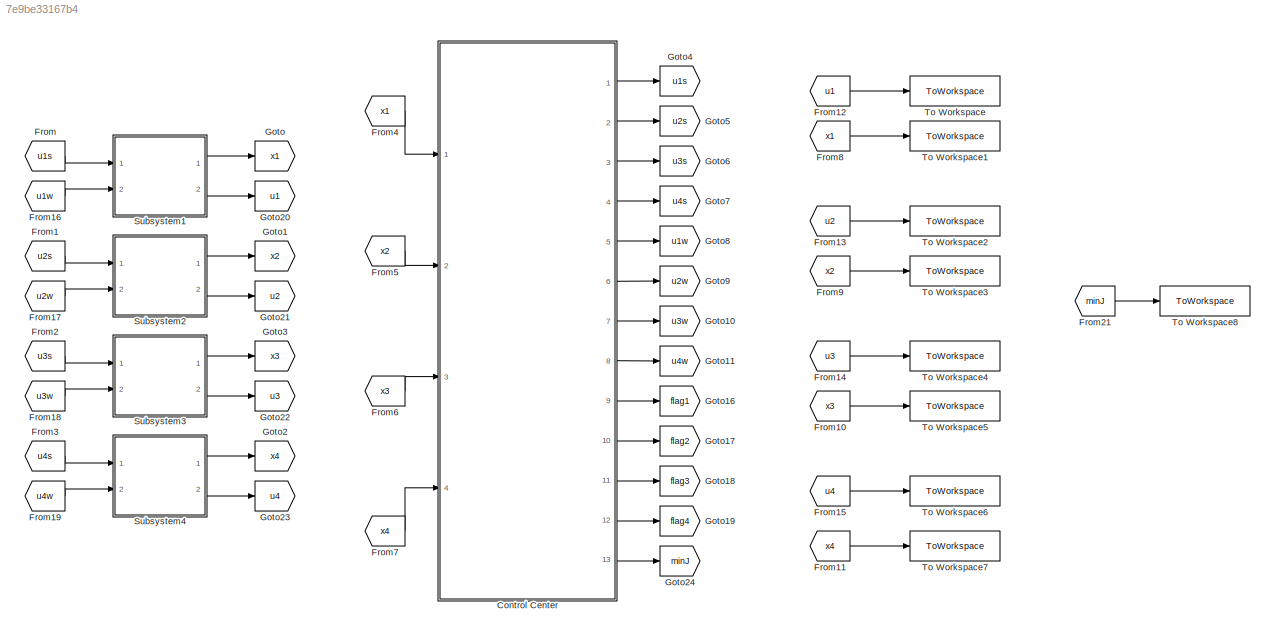
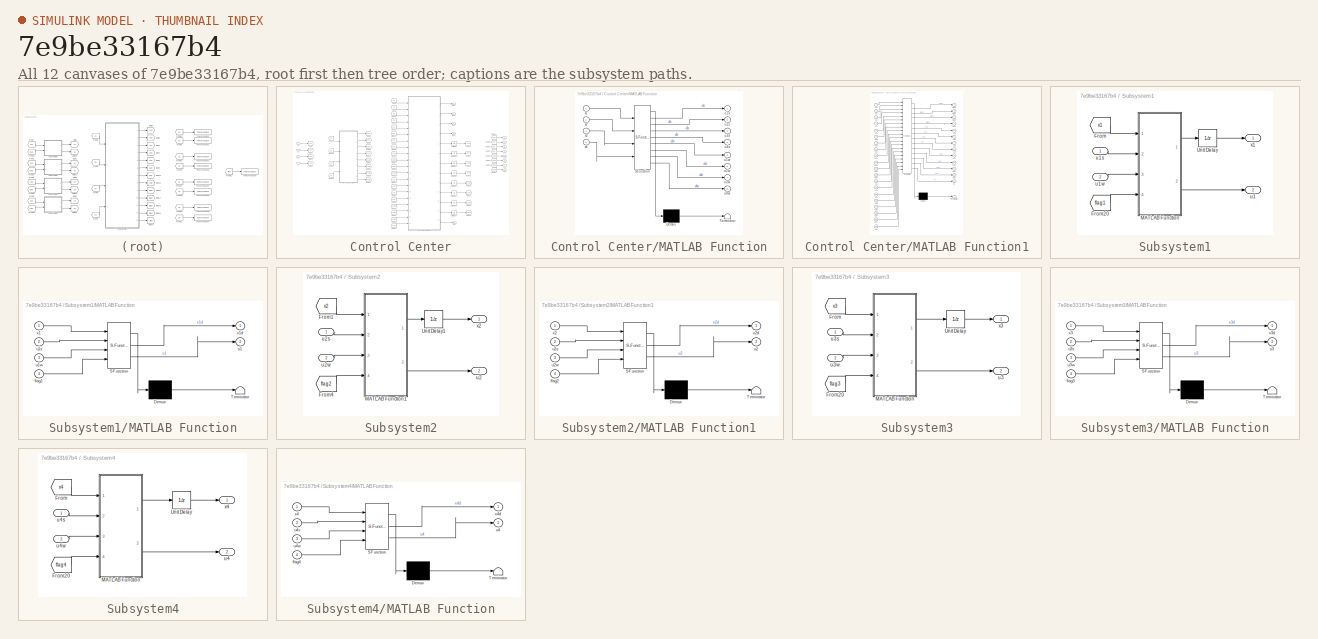
[diagram: thumbnail index - all 12 canvases of the model, root first then tree order]
MODEL slx_7e9be33167b4
KIND model
CONFIG AbsTol = auto
CONFIG EnableMultiTasking = off
CONFIG FixedStep = auto
CONFIG MaxStep = auto
CONFIG MinStep = auto
CONFIG RelTol = 1e-3
CONFIG SampleTimeConstraint = Unconstrained
CONFIG SolverName = VariableStepAuto
CONFIG StartTime = 0.0
CONFIG StopTime = 10
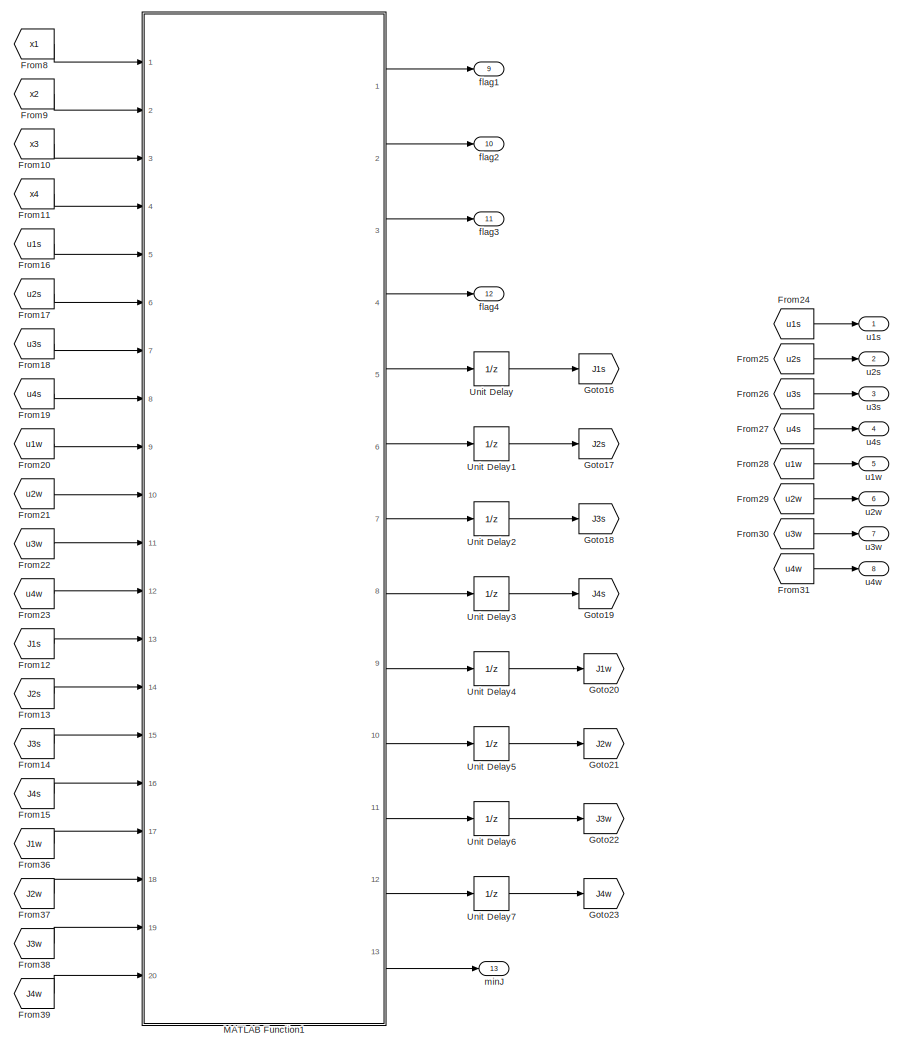
[diagram: Control Center - part 1/2, right side, full height]
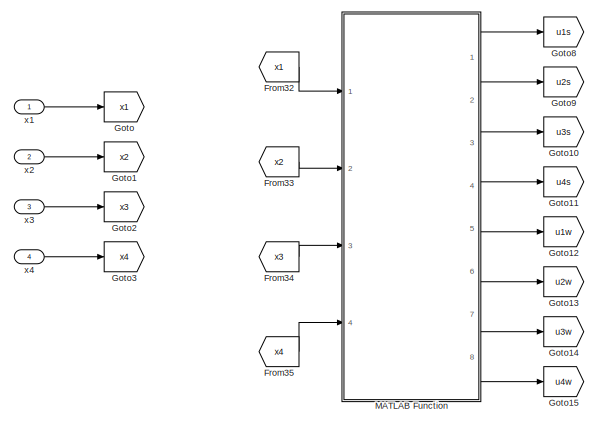
[diagram: Control Center - part 2/2, middle left region]
BLOCK [SubSystem] Control Center
  Ports = [4, 13]
  RequestExecContextInheritance = off
BLOCK [From] Control Center/From10
  GotoTag = x3
BLOCK [From] Control Center/From11
  GotoTag = x4
BLOCK [From] Control Center/From12
  GotoTag = J1s
BLOCK [From] Control Center/From13
  GotoTag = J2s
BLOCK [From] Control Center/From14
  GotoTag = J3s
BLOCK [From] Control Center/From15
  GotoTag = J4s
BLOCK [From] Control Center/From16
  GotoTag = u1s
BLOCK [From] Control Center/From17
  GotoTag = u2s
BLOCK [From] Control Center/From18
  GotoTag = u3s
BLOCK [From] Control Center/From19
  GotoTag = u4s
BLOCK [From] Control Center/From20
  GotoTag = u1w
BLOCK [From] Control Center/From21
  GotoTag = u2w
BLOCK [From] Control Center/From22
  GotoTag = u3w
BLOCK [From] Control Center/From23
  GotoTag = u4w
BLOCK [From] Control Center/From24
  GotoTag = u1s
BLOCK [From] Control Center/From25
  GotoTag = u2s
BLOCK [From] Control Center/From26
  GotoTag = u3s
BLOCK [From] Control Center/From27
  GotoTag = u4s
BLOCK [From] Control Center/From28
  GotoTag = u1w
BLOCK [From] Control Center/From29
  GotoTag = u2w
BLOCK [From] Control Center/From30
  GotoTag = u3w
BLOCK [From] Control Center/From31
  GotoTag = u4w
BLOCK [From] Control Center/From32
  GotoTag = x1
BLOCK [From] Control Center/From33
  GotoTag = x2
BLOCK [From] Control Center/From34
  GotoTag = x3
BLOCK [From] Control Center/From35
  GotoTag = x4
BLOCK [From] Control Center/From36
  GotoTag = J1w
BLOCK [From] Control Center/From37
  GotoTag = J2w
BLOCK [From] Control Center/From38
  GotoTag = J3w
BLOCK [From] Control Center/From39
  GotoTag = J4w
BLOCK [From] Control Center/From8
  GotoTag = x1
BLOCK [From] Control Center/From9
  GotoTag = x2
BLOCK [Goto] Control Center/Goto
  GotoTag = x1
BLOCK [Goto] Control Center/Goto1
  GotoTag = x2
BLOCK [Goto] Control Center/Goto10
  GotoTag = u3s
BLOCK [Goto] Control Center/Goto11
  GotoTag = u4s
BLOCK [Goto] Control Center/Goto12
  GotoTag = u1w
BLOCK [Goto] Control Center/Goto13
  GotoTag = u2w
BLOCK [Goto] Control Center/Goto14
  GotoTag = u3w
BLOCK [Goto] Control Center/Goto15
  GotoTag = u4w
BLOCK [Goto] Control Center/Goto16
  GotoTag = J1s
BLOCK [Goto] Control Center/Goto17
  GotoTag = J2s
BLOCK [Goto] Control Center/Goto18
  GotoTag = J3s
BLOCK [Goto] Control Center/Goto19
  GotoTag = J4s
BLOCK [Goto] Control Center/Goto2
  GotoTag = x3
BLOCK [Goto] Control Center/Goto20
  GotoTag = J1w
BLOCK [Goto] Control Center/Goto21
  GotoTag = J2w
BLOCK [Goto] Control Center/Goto22
  GotoTag = J3w
BLOCK [Goto] Control Center/Goto23
  GotoTag = J4w
BLOCK [Goto] Control Center/Goto3
  GotoTag = x4
BLOCK [Goto] Control Center/Goto8
  GotoTag = u1s
BLOCK [Goto] Control Center/Goto9
  GotoTag = u2s
BLOCK [SubSystem] Control Center/MATLAB Function
  ErrorFcn = Stateflow.Translate.translate
  PermitHierarchicalResolution = ExplicitOnly
  Ports = [4, 8]
  RequestExecContextInheritance = off
  SFBlockType = MATLAB Function
  TreatAsAtomicUnit = on
BLOCK [Demux] Control Center/MATLAB Function/ Demux 
  Outputs = 1
  Ports = [1, 1]
BLOCK [S-Function] Control Center/MATLAB Function/ SFunction 
  EnableBusSupport = on
  FunctionName = sf_sfun
  PortCounts = [4 9]
  Ports = [4, 9]
  SFcnIsStateOwnerBlock = off
  SFunctionDeploymentMode = off
  Tag = Stateflow S-Function 5
BLOCK [Terminator] Control Center/MATLAB Function/ Terminator 
BLOCK [Outport] Control Center/MATLAB Function/u1s
BLOCK [Outport] Control Center/MATLAB Function/u1w
  Port = 5
BLOCK [Outport] Control Center/MATLAB Function/u2s
  Port = 2
BLOCK [Outport] Control Center/MATLAB Function/u2w
  Port = 6
BLOCK [Outport] Control Center/MATLAB Function/u3s
  Port = 3
BLOCK [Outport] Control Center/MATLAB Function/u3w
  Port = 7
BLOCK [Outport] Control Center/MATLAB Function/u4s
  Port = 4
BLOCK [Outport] Control Center/MATLAB Function/u4w
  Port = 8
BLOCK [Inport] Control Center/MATLAB Function/x1
BLOCK [Inport] Control Center/MATLAB Function/x2
  Port = 2
BLOCK [Inport] Control Center/MATLAB Function/x3
  Port = 3
BLOCK [Inport] Control Center/MATLAB Function/x4
  Port = 4
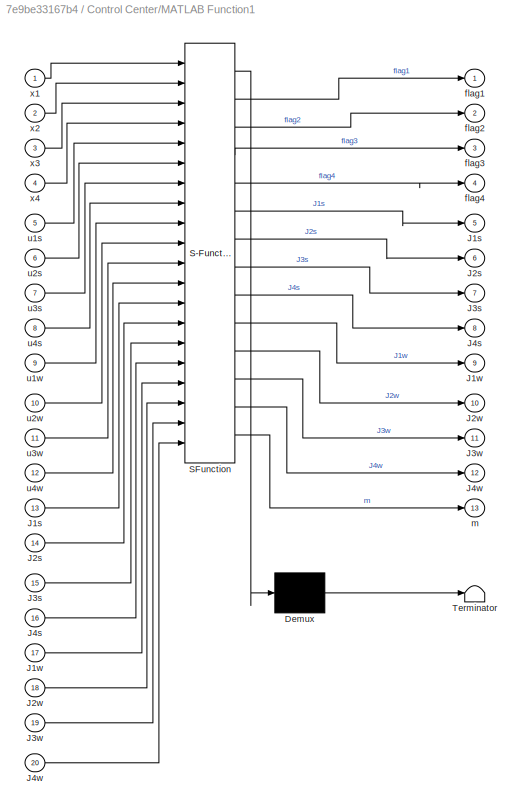
BLOCK [SubSystem] Control Center/MATLAB Function1
  ErrorFcn = Stateflow.Translate.translate
  PermitHierarchicalResolution = ExplicitOnly
  Ports = [20, 13]
  RequestExecContextInheritance = off
  SFBlockType = MATLAB Function
  TreatAsAtomicUnit = on
BLOCK [Demux] Control Center/MATLAB Function1/ Demux 
  Outputs = 1
  Ports = [1, 1]
BLOCK [S-Function] Control Center/MATLAB Function1/ SFunction 
  EnableBusSupport = on
  FunctionName = sf_sfun
  PortCounts = [20 14]
  Ports = [20, 14]
  SFcnIsStateOwnerBlock = off
  SFunctionDeploymentMode = off
  Tag = Stateflow S-Function 3
BLOCK [Terminator] Control Center/MATLAB Function1/ Terminator 
BLOCK [Outport] Control Center/MATLAB Function1/J1s
  Port = 5
BLOCK [Inport] Control Center/MATLAB Function1/J1s 
  Port = 13
BLOCK [Outport] Control Center/MATLAB Function1/J1w
  Port = 9
BLOCK [Inport] Control Center/MATLAB Function1/J1w 
  Port = 17
BLOCK [Outport] Control Center/MATLAB Function1/J2s
  Port = 6
BLOCK [Inport] Control Center/MATLAB Function1/J2s 
  Port = 14
BLOCK [Outport] Control Center/MATLAB Function1/J2w
  Port = 10
BLOCK [Inport] Control Center/MATLAB Function1/J2w 
  Port = 18
BLOCK [Outport] Control Center/MATLAB Function1/J3s
  Port = 7
BLOCK [Inport] Control Center/MATLAB Function1/J3s 
  Port = 15
BLOCK [Outport] Control Center/MATLAB Function1/J3w
  Port = 11
BLOCK [Inport] Control Center/MATLAB Function1/J3w 
  Port = 19
BLOCK [Outport] Control Center/MATLAB Function1/J4s
  Port = 8
BLOCK [Inport] Control Center/MATLAB Function1/J4s 
  Port = 16
BLOCK [Outport] Control Center/MATLAB Function1/J4w
  Port = 12
BLOCK [Inport] Control Center/MATLAB Function1/J4w 
  Port = 20
BLOCK [Outport] Control Center/MATLAB Function1/flag1
BLOCK [Outport] Control Center/MATLAB Function1/flag2
  Port = 2
BLOCK [Outport] Control Center/MATLAB Function1/flag3
  Port = 3
BLOCK [Outport] Control Center/MATLAB Function1/flag4
  Port = 4
BLOCK [Outport] Control Center/MATLAB Function1/m
  Port = 13
BLOCK [Inport] Control Center/MATLAB Function1/u1s
  Port = 5
BLOCK [Inport] Control Center/MATLAB Function1/u1w
  Port = 9
BLOCK [Inport] Control Center/MATLAB Function1/u2s
  Port = 6
BLOCK [Inport] Control Center/MATLAB Function1/u2w
  Port = 10
BLOCK [Inport] Control Center/MATLAB Function1/u3s
  Port = 7
BLOCK [Inport] Control Center/MATLAB Function1/u3w
  Port = 11
BLOCK [Inport] Control Center/MATLAB Function1/u4s
  Port = 8
BLOCK [Inport] Control Center/MATLAB Function1/u4w
  Port = 12
BLOCK [Inport] Control Center/MATLAB Function1/x1
BLOCK [Inport] Control Center/MATLAB Function1/x2
  Port = 2
BLOCK [Inport] Control Center/MATLAB Function1/x3
  Port = 3
BLOCK [Inport] Control Center/MATLAB Function1/x4
  Port = 4
BLOCK [UnitDelay] Control Center/Unit Delay
  HasFrameUpgradeWarning = on
  SampleTime = -1
BLOCK [UnitDelay] Control Center/Unit Delay1
  HasFrameUpgradeWarning = on
  SampleTime = -1
BLOCK [UnitDelay] Control Center/Unit Delay2
  HasFrameUpgradeWarning = on
  SampleTime = -1
BLOCK [UnitDelay] Control Center/Unit Delay3
  HasFrameUpgradeWarning = on
  SampleTime = -1
BLOCK [UnitDelay] Control Center/Unit Delay4
  HasFrameUpgradeWarning = on
  SampleTime = -1
BLOCK [UnitDelay] Control Center/Unit Delay5
  HasFrameUpgradeWarning = on
  SampleTime = -1
BLOCK [UnitDelay] Control Center/Unit Delay6
  HasFrameUpgradeWarning = on
  SampleTime = -1
BLOCK [UnitDelay] Control Center/Unit Delay7
  HasFrameUpgradeWarning = on
  SampleTime = -1
BLOCK [Outport] Control Center/flag1
  Port = 9
BLOCK [Outport] Control Center/flag2
  Port = 10
BLOCK [Outport] Control Center/flag3
  Port = 11
BLOCK [Outport] Control Center/flag4
  Port = 12
BLOCK [Outport] Control Center/minJ
  Port = 13
BLOCK [Outport] Control Center/u1s
BLOCK [Outport] Control Center/u1w
  Port = 5
BLOCK [Outport] Control Center/u2s
  Port = 2
BLOCK [Outport] Control Center/u2w
  Port = 6
BLOCK [Outport] Control Center/u3s
  Port = 3
BLOCK [Outport] Control Center/u3w
  Port = 7
BLOCK [Outport] Control Center/u4s
  Port = 4
BLOCK [Outport] Control Center/u4w
  Port = 8
BLOCK [Inport] Control Center/x1
BLOCK [Inport] Control Center/x2
  Port = 2
BLOCK [Inport] Control Center/x3
  Port = 3
BLOCK [Inport] Control Center/x4
  Port = 4
BLOCK [From] From
  GotoTag = u1s
  TagVisibility = global
BLOCK [From] From1
  GotoTag = u2s
  TagVisibility = global
BLOCK [From] From10
  GotoTag = x3
  TagVisibility = global
BLOCK [From] From11
  GotoTag = x4
  TagVisibility = global
BLOCK [From] From12
  GotoTag = u1
  TagVisibility = global
BLOCK [From] From13
  GotoTag = u2
  TagVisibility = global
BLOCK [From] From14
  GotoTag = u3
  TagVisibility = global
BLOCK [From] From15
  GotoTag = u4
  TagVisibility = global
BLOCK [From] From16
  GotoTag = u1w
  TagVisibility = global
BLOCK [From] From17
  GotoTag = u2w
  TagVisibility = global
BLOCK [From] From18
  GotoTag = u3w
  TagVisibility = global
BLOCK [From] From19
  GotoTag = u4w
  TagVisibility = global
BLOCK [From] From2
  GotoTag = u3s
  TagVisibility = global
BLOCK [From] From21
  GotoTag = minJ
BLOCK [From] From3
  GotoTag = u4s
  TagVisibility = global
BLOCK [From] From4
  GotoTag = x1
  TagVisibility = global
BLOCK [From] From5
  GotoTag = x2
  TagVisibility = global
BLOCK [From] From6
  GotoTag = x3
  TagVisibility = global
BLOCK [From] From7
  GotoTag = x4
  TagVisibility = global
BLOCK [From] From8
  GotoTag = x1
  TagVisibility = global
BLOCK [From] From9
  GotoTag = x2
  TagVisibility = global
BLOCK [Goto] Goto
  GotoTag = x1
  TagVisibility = global
BLOCK [Goto] Goto1
  GotoTag = x2
  TagVisibility = global
BLOCK [Goto] Goto10
  GotoTag = u3w
  TagVisibility = global
BLOCK [Goto] Goto11
  GotoTag = u4w
  TagVisibility = global
BLOCK [Goto] Goto16
  GotoTag = flag1
  TagVisibility = global
BLOCK [Goto] Goto17
  GotoTag = flag2
  TagVisibility = global
BLOCK [Goto] Goto18
  GotoTag = flag3
  TagVisibility = global
BLOCK [Goto] Goto19
  GotoTag = flag4
  TagVisibility = global
BLOCK [Goto] Goto2
  GotoTag = x4
  TagVisibility = global
BLOCK [Goto] Goto20
  GotoTag = u1
  TagVisibility = global
BLOCK [Goto] Goto21
  GotoTag = u2
  TagVisibility = global
BLOCK [Goto] Goto22
  GotoTag = u3
  TagVisibility = global
BLOCK [Goto] Goto23
  GotoTag = u4
  TagVisibility = global
BLOCK [Goto] Goto24
  GotoTag = minJ
BLOCK [Goto] Goto3
  GotoTag = x3
  TagVisibility = global
BLOCK [Goto] Goto4
  GotoTag = u1s
  TagVisibility = global
BLOCK [Goto] Goto5
  GotoTag = u2s
  TagVisibility = global
BLOCK [Goto] Goto6
  GotoTag = u3s
  TagVisibility = global
BLOCK [Goto] Goto7
  GotoTag = u4s
  TagVisibility = global
BLOCK [Goto] Goto8
  GotoTag = u1w
  TagVisibility = global
BLOCK [Goto] Goto9
  GotoTag = u2w
  TagVisibility = global
BLOCK [SubSystem] Subsystem1
  Ports = [2, 2]
  RequestExecContextInheritance = off
BLOCK [From] Subsystem1/From
  GotoTag = x1
  TagVisibility = global
BLOCK [From] Subsystem1/From20
  GotoTag = flag1
  TagVisibility = global
BLOCK [SubSystem] Subsystem1/MATLAB Function
  ErrorFcn = Stateflow.Translate.translate
  PermitHierarchicalResolution = ExplicitOnly
  Ports = [4, 2]
  RequestExecContextInheritance = off
  SFBlockType = MATLAB Function
  TreatAsAtomicUnit = on
BLOCK [Demux] Subsystem1/MATLAB Function/ Demux 
  Outputs = 1
  Ports = [1, 1]
BLOCK [S-Function] Subsystem1/MATLAB Function/ SFunction 
  EnableBusSupport = on
  FunctionName = sf_sfun
  PortCounts = [4 3]
  Ports = [4, 3]
  SFcnIsStateOwnerBlock = off
  SFunctionDeploymentMode = off
  Tag = Stateflow S-Function 2
BLOCK [Terminator] Subsystem1/MATLAB Function/ Terminator 
BLOCK [Inport] Subsystem1/MATLAB Function/flag1
  Port = 4
BLOCK [Outport] Subsystem1/MATLAB Function/u1
  Port = 2
BLOCK [Inport] Subsystem1/MATLAB Function/u1s
  Port = 2
BLOCK [Inport] Subsystem1/MATLAB Function/u1w
  Port = 3
BLOCK [Inport] Subsystem1/MATLAB Function/x1
BLOCK [Outport] Subsystem1/MATLAB Function/x1d
BLOCK [UnitDelay] Subsystem1/Unit Delay
  HasFrameUpgradeWarning = on
  InitialCondition = [1.5;1.5]
BLOCK [Outport] Subsystem1/u1
  Port = 2
BLOCK [Inport] Subsystem1/u1s
BLOCK [Inport] Subsystem1/u1w
  Port = 2
BLOCK [Outport] Subsystem1/x1
BLOCK [SubSystem] Subsystem2
  Ports = [2, 2]
  RequestExecContextInheritance = off
BLOCK [From] Subsystem2/From1
  GotoTag = x2
  TagVisibility = global
BLOCK [From] Subsystem2/From4
  GotoTag = flag2
  TagVisibility = global
BLOCK [SubSystem] Subsystem2/MATLAB Function1
  ErrorFcn = Stateflow.Translate.translate
  PermitHierarchicalResolution = ExplicitOnly
  Ports = [4, 2]
  RequestExecContextInheritance = off
  SFBlockType = MATLAB Function
  TreatAsAtomicUnit = on
BLOCK [Demux] Subsystem2/MATLAB Function1/ Demux 
  Outputs = 1
  Ports = [1, 1]
BLOCK [S-Function] Subsystem2/MATLAB Function1/ SFunction 
  EnableBusSupport = on
  FunctionName = sf_sfun
  PortCounts = [4 3]
  Ports = [4, 3]
  SFcnIsStateOwnerBlock = off
  SFunctionDeploymentMode = off
  Tag = Stateflow S-Function 7
BLOCK [Terminator] Subsystem2/MATLAB Function1/ Terminator 
BLOCK [Inport] Subsystem2/MATLAB Function1/flag2
  Port = 4
BLOCK [Outport] Subsystem2/MATLAB Function1/u2
  Port = 2
BLOCK [Inport] Subsystem2/MATLAB Function1/u2s
  Port = 2
BLOCK [Inport] Subsystem2/MATLAB Function1/u2w
  Port = 3
BLOCK [Inport] Subsystem2/MATLAB Function1/x2
BLOCK [Outport] Subsystem2/MATLAB Function1/x2d
BLOCK [UnitDelay] Subsystem2/Unit Delay1
  HasFrameUpgradeWarning = on
  InitialCondition = [1.5;1.5]
BLOCK [Outport] Subsystem2/u2
  Port = 2
BLOCK [Inport] Subsystem2/u2s
BLOCK [Inport] Subsystem2/u2w
  Port = 2
BLOCK [Outport] Subsystem2/x2
BLOCK [SubSystem] Subsystem3
  Ports = [2, 2]
  RequestExecContextInheritance = off
BLOCK [From] Subsystem3/From
  GotoTag = x3
  TagVisibility = global
BLOCK [From] Subsystem3/From20
  GotoTag = flag3
  TagVisibility = global
BLOCK [SubSystem] Subsystem3/MATLAB Function
  ErrorFcn = Stateflow.Translate.translate
  PermitHierarchicalResolution = ExplicitOnly
  Ports = [4, 2]
  RequestExecContextInheritance = off
  SFBlockType = MATLAB Function
  TreatAsAtomicUnit = on
BLOCK [Demux] Subsystem3/MATLAB Function/ Demux 
  Outputs = 1
  Ports = [1, 1]
BLOCK [S-Function] Subsystem3/MATLAB Function/ SFunction 
  EnableBusSupport = on
  FunctionName = sf_sfun
  PortCounts = [4 3]
  Ports = [4, 3]
  SFcnIsStateOwnerBlock = off
  SFunctionDeploymentMode = off
  Tag = Stateflow S-Function 6
BLOCK [Terminator] Subsystem3/MATLAB Function/ Terminator 
BLOCK [Inport] Subsystem3/MATLAB Function/flag3
  Port = 4
BLOCK [Outport] Subsystem3/MATLAB Function/u3
  Port = 2
BLOCK [Inport] Subsystem3/MATLAB Function/u3s
  Port = 2
BLOCK [Inport] Subsystem3/MATLAB Function/u3w
  Port = 3
BLOCK [Inport] Subsystem3/MATLAB Function/x3
BLOCK [Outport] Subsystem3/MATLAB Function/x3d
BLOCK [UnitDelay] Subsystem3/Unit Delay
  HasFrameUpgradeWarning = on
  InitialCondition = [1.5;1.5]
BLOCK [Outport] Subsystem3/u3
  Port = 2
BLOCK [Inport] Subsystem3/u3s
BLOCK [Inport] Subsystem3/u3w
  Port = 2
BLOCK [Outport] Subsystem3/x3
BLOCK [SubSystem] Subsystem4
  Ports = [2, 2]
  RequestExecContextInheritance = off
BLOCK [From] Subsystem4/From
  GotoTag = x4
  TagVisibility = global
BLOCK [From] Subsystem4/From20
  GotoTag = flag4
  TagVisibility = global
BLOCK [SubSystem] Subsystem4/MATLAB Function
  ErrorFcn = Stateflow.Translate.translate
  PermitHierarchicalResolution = ExplicitOnly
  Ports = [4, 2]
  RequestExecContextInheritance = off
  SFBlockType = MATLAB Function
  TreatAsAtomicUnit = on
BLOCK [Demux] Subsystem4/MATLAB Function/ Demux 
  Outputs = 1
  Ports = [1, 1]
BLOCK [S-Function] Subsystem4/MATLAB Function/ SFunction 
  EnableBusSupport = on
  FunctionName = sf_sfun
  PortCounts = [4 3]
  Ports = [4, 3]
  SFcnIsStateOwnerBlock = off
  SFunctionDeploymentMode = off
  Tag = Stateflow S-Function 1
BLOCK [Terminator] Subsystem4/MATLAB Function/ Terminator 
BLOCK [Inport] Subsystem4/MATLAB Function/flag4
  Port = 4
BLOCK [Outport] Subsystem4/MATLAB Function/u4
  Port = 2
BLOCK [Inport] Subsystem4/MATLAB Function/u4s
  Port = 2
BLOCK [Inport] Subsystem4/MATLAB Function/u4w
  Port = 3
BLOCK [Inport] Subsystem4/MATLAB Function/x4
BLOCK [Outport] Subsystem4/MATLAB Function/x4d
BLOCK [UnitDelay] Subsystem4/Unit Delay
  HasFrameUpgradeWarning = on
  InitialCondition = [1.5;1.5]
BLOCK [Outport] Subsystem4/u4
  Port = 2
BLOCK [Inport] Subsystem4/u4s
BLOCK [Inport] Subsystem4/u4w
  Port = 2
BLOCK [Outport] Subsystem4/x4
BLOCK [ToWorkspace] To Workspace
  FixptAsFi = on
  MaxDataPoints = inf
  Ports = [1]
  SampleTime = -1
  SaveFormat = Timeseries
  VariableName = U1
BLOCK [ToWorkspace] To Workspace1
  FixptAsFi = on
  MaxDataPoints = inf
  Ports = [1]
  SampleTime = -1
  SaveFormat = Timeseries
  VariableName = X1
BLOCK [ToWorkspace] To Workspace2
  FixptAsFi = on
  MaxDataPoints = inf
  Ports = [1]
  SampleTime = -1
  SaveFormat = Timeseries
  VariableName = U2
BLOCK [ToWorkspace] To Workspace3
  FixptAsFi = on
  MaxDataPoints = inf
  Ports = [1]
  SampleTime = -1
  SaveFormat = Timeseries
  VariableName = X2
BLOCK [ToWorkspace] To Workspace4
  FixptAsFi = on
  MaxDataPoints = inf
  Ports = [1]
  SampleTime = -1
  SaveFormat = Timeseries
  VariableName = U3
BLOCK [ToWorkspace] To Workspace5
  FixptAsFi = on
  MaxDataPoints = inf
  Ports = [1]
  SampleTime = -1
  SaveFormat = Timeseries
  VariableName = X3
BLOCK [ToWorkspace] To Workspace6
  FixptAsFi = on
  MaxDataPoints = inf
  Ports = [1]
  SampleTime = -1
  SaveFormat = Timeseries
  VariableName = U4
BLOCK [ToWorkspace] To Workspace7
  FixptAsFi = on
  MaxDataPoints = inf
  Ports = [1]
  SampleTime = -1
  SaveFormat = Timeseries
  VariableName = X4
BLOCK [ToWorkspace] To Workspace8
  FixptAsFi = on
  MaxDataPoints = inf
  Ports = [1]
  SampleTime = -1
  SaveFormat = Timeseries
  VariableName = M
LINE Control Center/From10:1 -> Control Center/MATLAB Function1:3
LINE Control Center/From11:1 -> Control Center/MATLAB Function1:4
LINE Control Center/From12:1 -> Control Center/MATLAB Function1:13
LINE Control Center/From13:1 -> Control Center/MATLAB Function1:14
LINE Control Center/From14:1 -> Control Center/MATLAB Function1:15
LINE Control Center/From15:1 -> Control Center/MATLAB Function1:16
LINE Control Center/From16:1 -> Control Center/MATLAB Function1:5
LINE Control Center/From17:1 -> Control Center/MATLAB Function1:6
LINE Control Center/From18:1 -> Control Center/MATLAB Function1:7
LINE Control Center/From19:1 -> Control Center/MATLAB Function1:8
LINE Control Center/From20:1 -> Control Center/MATLAB Function1:9
LINE Control Center/From21:1 -> Control Center/MATLAB Function1:10
LINE Control Center/From22:1 -> Control Center/MATLAB Function1:11
LINE Control Center/From23:1 -> Control Center/MATLAB Function1:12
LINE Control Center/From24:1 -> Control Center/u1s:1
LINE Control Center/From25:1 -> Control Center/u2s:1
LINE Control Center/From26:1 -> Control Center/u3s:1
LINE Control Center/From27:1 -> Control Center/u4s:1
LINE Control Center/From28:1 -> Control Center/u1w:1
LINE Control Center/From29:1 -> Control Center/u2w:1
LINE Control Center/From30:1 -> Control Center/u3w:1
LINE Control Center/From31:1 -> Control Center/u4w:1
LINE Control Center/From32:1 -> Control Center/MATLAB Function:1
LINE Control Center/From33:1 -> Control Center/MATLAB Function:2
LINE Control Center/From34:1 -> Control Center/MATLAB Function:3
LINE Control Center/From35:1 -> Control Center/MATLAB Function:4
LINE Control Center/From36:1 -> Control Center/MATLAB Function1:17
LINE Control Center/From37:1 -> Control Center/MATLAB Function1:18
LINE Control Center/From38:1 -> Control Center/MATLAB Function1:19
LINE Control Center/From39:1 -> Control Center/MATLAB Function1:20
LINE Control Center/From8:1 -> Control Center/MATLAB Function1:1
LINE Control Center/From9:1 -> Control Center/MATLAB Function1:2
LINE Control Center/MATLAB Function1:1 -> Control Center/flag1:1
LINE Control Center/MATLAB Function1:10 -> Control Center/Unit Delay5:1
LINE Control Center/MATLAB Function1:11 -> Control Center/Unit Delay6:1
LINE Control Center/MATLAB Function1:12 -> Control Center/Unit Delay7:1
LINE Control Center/MATLAB Function1:13 -> Control Center/minJ:1
LINE Control Center/MATLAB Function1:2 -> Control Center/flag2:1
LINE Control Center/MATLAB Function1:3 -> Control Center/flag3:1
LINE Control Center/MATLAB Function1:4 -> Control Center/flag4:1
LINE Control Center/MATLAB Function1:5 -> Control Center/Unit Delay:1
LINE Control Center/MATLAB Function1:6 -> Control Center/Unit Delay1:1
LINE Control Center/MATLAB Function1:7 -> Control Center/Unit Delay2:1
LINE Control Center/MATLAB Function1:8 -> Control Center/Unit Delay3:1
LINE Control Center/MATLAB Function1:9 -> Control Center/Unit Delay4:1
LINE Control Center/MATLAB Function:1 -> Control Center/Goto8:1
LINE Control Center/MATLAB Function:2 -> Control Center/Goto9:1
LINE Control Center/MATLAB Function:3 -> Control Center/Goto10:1
LINE Control Center/MATLAB Function:4 -> Control Center/Goto11:1
LINE Control Center/MATLAB Function:5 -> Control Center/Goto12:1
LINE Control Center/MATLAB Function:6 -> Control Center/Goto13:1
LINE Control Center/MATLAB Function:7 -> Control Center/Goto14:1
LINE Control Center/MATLAB Function:8 -> Control Center/Goto15:1
LINE Control Center/Unit Delay1:1 -> Control Center/Goto17:1
LINE Control Center/Unit Delay2:1 -> Control Center/Goto18:1
LINE Control Center/Unit Delay3:1 -> Control Center/Goto19:1
LINE Control Center/Unit Delay4:1 -> Control Center/Goto20:1
LINE Control Center/Unit Delay5:1 -> Control Center/Goto21:1
LINE Control Center/Unit Delay6:1 -> Control Center/Goto22:1
LINE Control Center/Unit Delay7:1 -> Control Center/Goto23:1
LINE Control Center/Unit Delay:1 -> Control Center/Goto16:1
LINE Control Center/x1:1 -> Control Center/Goto:1
LINE Control Center/x2:1 -> Control Center/Goto1:1
LINE Control Center/x3:1 -> Control Center/Goto2:1
LINE Control Center/x4:1 -> Control Center/Goto3:1
LINE Control Center:1 -> Goto4:1
LINE Control Center:10 -> Goto17:1
LINE Control Center:11 -> Goto18:1
LINE Control Center:12 -> Goto19:1
LINE Control Center:13 -> Goto24:1
LINE Control Center:2 -> Goto5:1
LINE Control Center:3 -> Goto6:1
LINE Control Center:4 -> Goto7:1
LINE Control Center:5 -> Goto8:1
LINE Control Center:6 -> Goto9:1
LINE Control Center:7 -> Goto10:1
LINE Control Center:8 -> Goto11:1
LINE Control Center:9 -> Goto16:1
LINE From10:1 -> To Workspace5:1
LINE From11:1 -> To Workspace7:1
LINE From12:1 -> To Workspace:1
LINE From13:1 -> To Workspace2:1
LINE From14:1 -> To Workspace4:1
LINE From15:1 -> To Workspace6:1
LINE From16:1 -> Subsystem1:2
LINE From17:1 -> Subsystem2:2
LINE From18:1 -> Subsystem3:2
LINE From19:1 -> Subsystem4:2
LINE From1:1 -> Subsystem2:1
LINE From21:1 -> To Workspace8:1
LINE From2:1 -> Subsystem3:1
LINE From3:1 -> Subsystem4:1
LINE From4:1 -> Control Center:1
LINE From5:1 -> Control Center:2
LINE From6:1 -> Control Center:3
LINE From7:1 -> Control Center:4
LINE From8:1 -> To Workspace1:1
LINE From9:1 -> To Workspace3:1
LINE From:1 -> Subsystem1:1
LINE Subsystem1/From20:1 -> Subsystem1/MATLAB Function:4
LINE Subsystem1/From:1 -> Subsystem1/MATLAB Function:1
LINE Subsystem1/MATLAB Function:1 -> Subsystem1/Unit Delay:1
LINE Subsystem1/MATLAB Function:2 -> Subsystem1/u1:1
LINE Subsystem1/Unit Delay:1 -> Subsystem1/x1:1
LINE Subsystem1/u1s:1 -> Subsystem1/MATLAB Function:2
LINE Subsystem1/u1w:1 -> Subsystem1/MATLAB Function:3
LINE Subsystem1:1 -> Goto:1
LINE Subsystem1:2 -> Goto20:1
LINE Subsystem2/From1:1 -> Subsystem2/MATLAB Function1:1
LINE Subsystem2/From4:1 -> Subsystem2/MATLAB Function1:4
LINE Subsystem2/MATLAB Function1:1 -> Subsystem2/Unit Delay1:1
LINE Subsystem2/MATLAB Function1:2 -> Subsystem2/u2:1
LINE Subsystem2/Unit Delay1:1 -> Subsystem2/x2:1
LINE Subsystem2/u2s:1 -> Subsystem2/MATLAB Function1:2
LINE Subsystem2/u2w:1 -> Subsystem2/MATLAB Function1:3
LINE Subsystem2:1 -> Goto1:1
LINE Subsystem2:2 -> Goto21:1
LINE Subsystem3/From20:1 -> Subsystem3/MATLAB Function:4
LINE Subsystem3/From:1 -> Subsystem3/MATLAB Function:1
LINE Subsystem3/MATLAB Function:1 -> Subsystem3/Unit Delay:1
LINE Subsystem3/MATLAB Function:2 -> Subsystem3/u3:1
LINE Subsystem3/Unit Delay:1 -> Subsystem3/x3:1
LINE Subsystem3/u3s:1 -> Subsystem3/MATLAB Function:2
LINE Subsystem3/u3w:1 -> Subsystem3/MATLAB Function:3
LINE Subsystem3:1 -> Goto3:1
LINE Subsystem3:2 -> Goto22:1
LINE Subsystem4/From20:1 -> Subsystem4/MATLAB Function:4
LINE Subsystem4/From:1 -> Subsystem4/MATLAB Function:1
LINE Subsystem4/MATLAB Function:1 -> Subsystem4/Unit Delay:1
LINE Subsystem4/MATLAB Function:2 -> Subsystem4/u4:1
LINE Subsystem4/Unit Delay:1 -> Subsystem4/x4:1
LINE Subsystem4/u4s:1 -> Subsystem4/MATLAB Function:2
LINE Subsystem4/u4w:1 -> Subsystem4/MATLAB Function:3
LINE Subsystem4:1 -> Goto2:1
LINE Subsystem4:2 -> Goto23:1
CHART Control Center/MATLAB Function states=1 transitions=1
  STATE_LABEL 'eML_blk_kernel()'
  STATE_LABEL 'SCRIPT:\nfunction [u1s,u2s,u3s,u4s,u1w,u2w,u3w,u4w] = fcn(x1,x2,x3,x4)\n\ncoder.extrinsic("dlqr")\n\n\n\nA1=[-3 -2; 1 0];\nB1=[4; 0];\n\n\nA2=[-5.5 -3; 2 0];\nB2=[2; 0];\n\n\nA3=[-4 -1.75; 1 0];\nB3=[1; 0];\n\nA4=[-4 -2; 2 0];\nB4=[2; 0];\n\nQ1=eye(2);\nR1=1;\n\n\nQ2=[1 0;0 2];\nR2=0.5;\n\nQ3=[2 0;0 1];\nR3=1;\n\nQ4=2*eye(2);\nR4=2;\n\nk1=zeros(1,2);\nk2=zeros(1,2);\nk3=zeros(1,2);\nk4=zeros(1,2);\n\nk1w=zeros(1,2);\nk2w=zeros(1,2);\nk3w...<+337ch>'
CHART Subsystem3/MATLAB Function states=1 transitions=1
  STATE_LABEL 'eML_blk_kernel()'
  STATE_LABEL 'SCRIPT:\nfunction [x3d,u3]  = fcn(x3,u3s,u3w,flag3)\n\n\nif flag3==1\n    u3=u3s;\nelse\n    u3=u3w;\nend\n\nA3=[-4 -1.75; 1 0];\nB3=[1; 0];\n\n\nx3d= A3*x3 + B3*u3;\n\n\nend'
CHART Subsystem2/MATLAB Function1 states=1 transitions=1
  STATE_LABEL 'eML_blk_kernel()'
  STATE_LABEL 'SCRIPT:\nfunction [x2d,u2] = fcn(x2,u2s,u2w,flag2)\n\n\nif flag2==1\n    u2=u2s;\nelse\n    u2=u2w;\nend\n\n\n\nA2=[-5.5 -3; 2 0];\nB2=[2; 0];\n\nx2d= A2*x2 + B2*u2;\n\n\nend'
CHART Subsystem4/MATLAB Function states=1 transitions=1
  STATE_LABEL 'eML_blk_kernel()'
  STATE_LABEL 'SCRIPT:\nfunction [x4d,u4]  = fcn(x4,u4s,u4w,flag4)\n\n\nif flag4==1\n    u4=u4s;\nelse\n    u4=u4w;\nend\n\n\nA4=[-4 -2; 2 0];\nB4=[2; 0];\n\n\nx4d= A4*x4 + B4*u4;\n\n\nend'
CHART Subsystem1/MATLAB Function states=1 transitions=1
  STATE_LABEL 'eML_blk_kernel()'
  STATE_LABEL 'SCRIPT:\nfunction [x1d,u1] = fcn(x1,u1s,u1w,flag1)\n\n\nif flag1==1\n    u1=u1s;\nelse\n    u1=u1w;\nend\n\n\nA1=[-3 -2; 1 0];\nB1=[4; 0];\n\n\nx1d= A1*x1 + B1*u1;\n\n\nend'
CHART Control Center/MATLAB Function1 states=1 transitions=1
  STATE_LABEL 'eML_blk_kernel()'
  STATE_LABEL 'SCRIPT:\nfunction [flag1,flag2,flag3,flag4,J1s,J2s,J3s,J4s,J1w,J2w,J3w,J4w,m]= fcn(x1,x2,x3,x4,u1s,u2s,u3s,u4s,u1w,u2w,u3w,u4w,J1s,J2s,J3s,J4s,J1w,J2w,J3w,J4w)\n\ncoder.extrinsic("allcomb")\n\n\nQ1=eye(2);\nR1=1;\n\nQ2=[1 0;0 2];\nR2=0.5;\n\nQ3=[2 0;0 1];\nR3=1;\n\nQ4=2*eye(2);\nR4=2;\n\n\nJ1s= J1s+  x1\'*Q1*x1 + u1s\'*R1*u1s;\nJ2s= J2s+ x2\'*Q2*x2 + u2s\'*R2*u2s;\nJ3s= J3s+ x3\'*Q3*x3 + u3s\'*R3*u3s;\nJ4s= J4s+ x4\'*Q4*x4 + ...<+564ch>'
CHART  states=0 transitions=0
CHART  states=0 transitions=0
CHART  states=0 transitions=0
CHART  states=0 transitions=0
CHART  states=0 transitions=0
CHART  states=0 transitions=0
